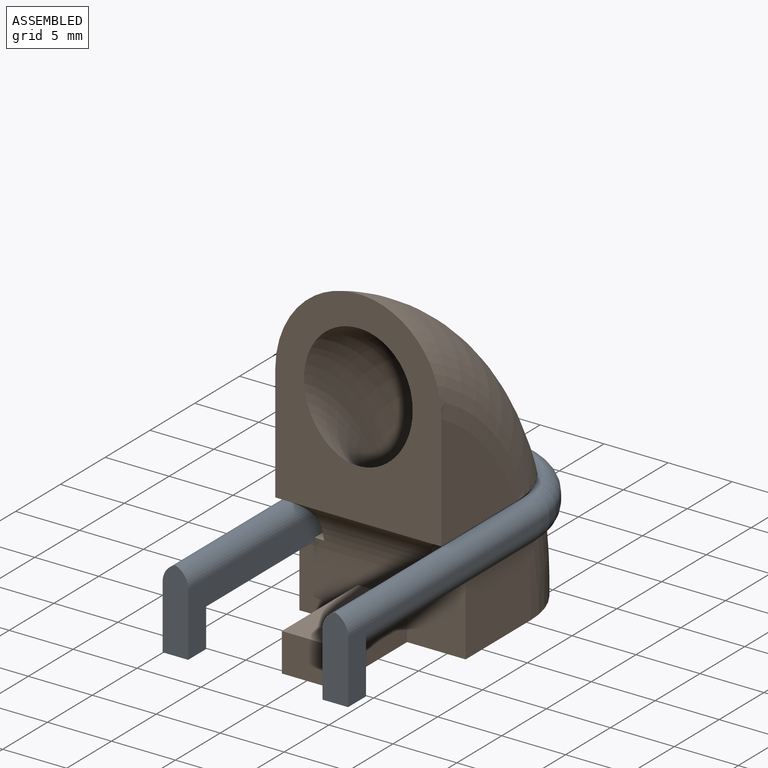
[diagram: assembled view]
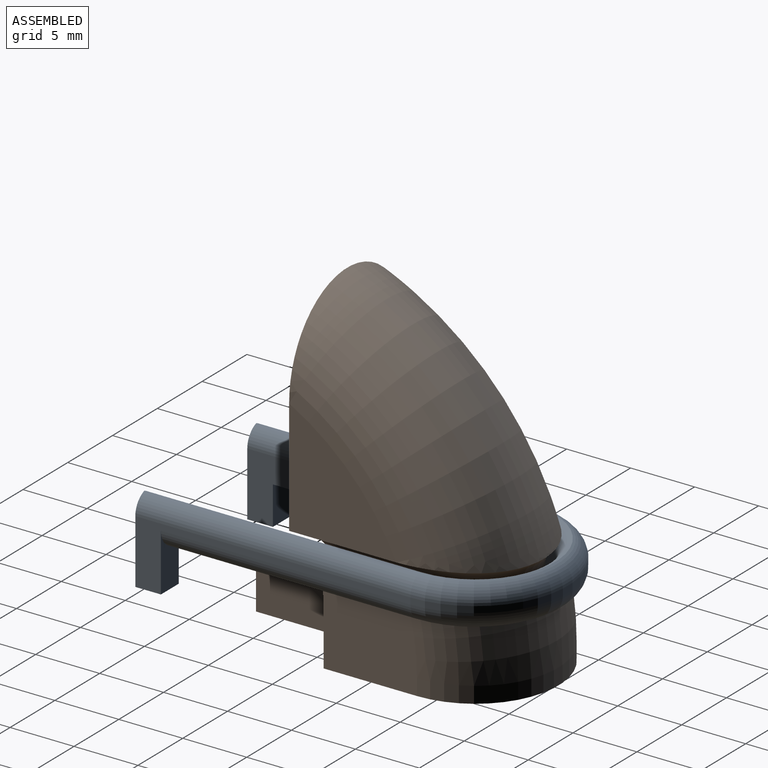
[diagram: assembled view, second angle]
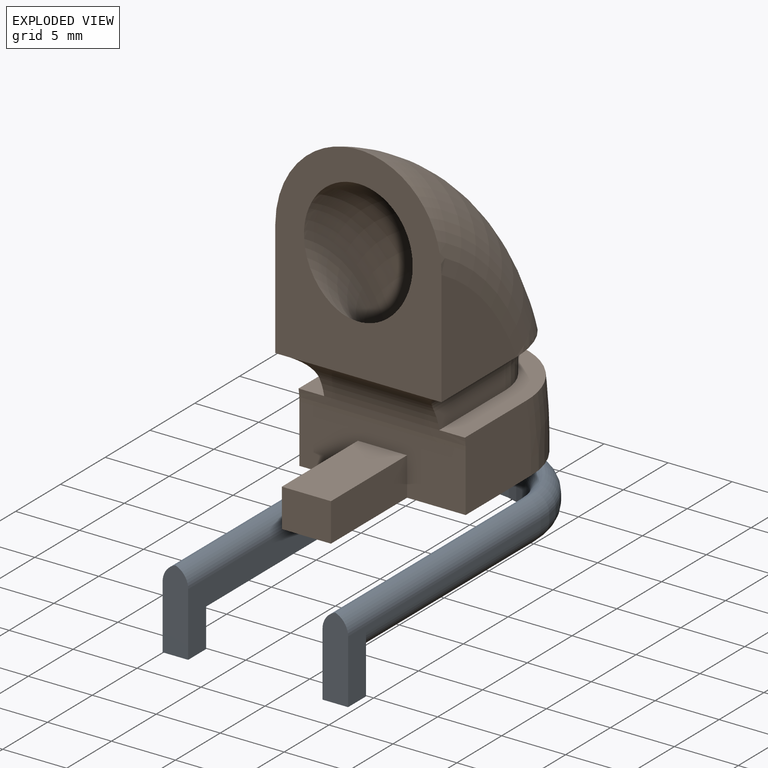
[diagram: exploded view]
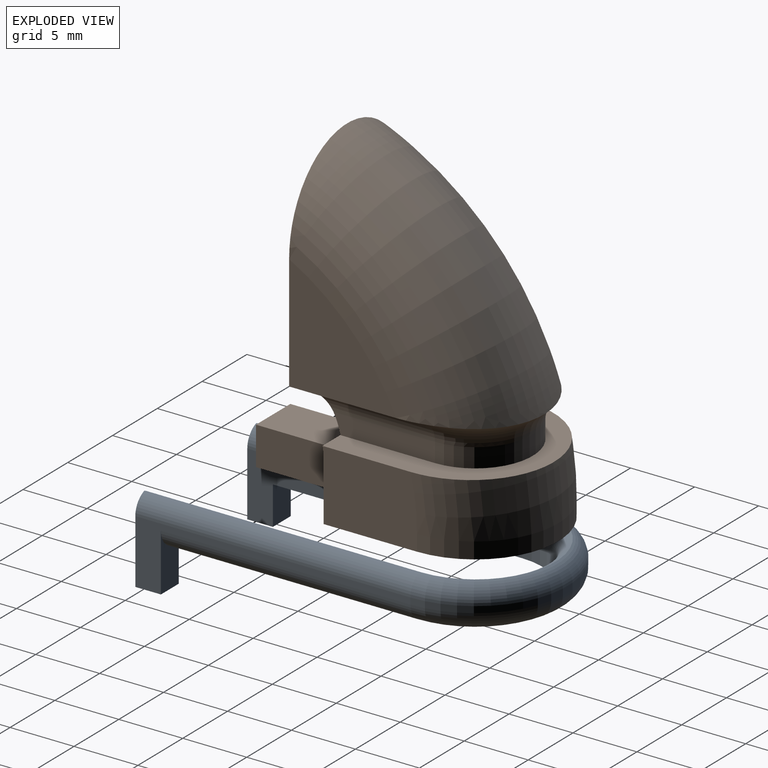
[diagram: exploded view, second angle]
ASSEMBLY  parts=2 mates=2
PART A: 22 faces, bbox 15.7x29.3x6.5 mm
  f0: plane 25.25x11.5mm, normal (0,0,1), area 28.1mm2, adj f1,f2,f3,f9,f11,f19,f20,f21
  f1: plane 21.5x5mm, normal (1,0,0), area 49mm2, adj f0,f2,f8,f9,f10,f13
  f2: cylinder r=5.25mm len=10.5mm, axis (0,0,-1), area 33mm2, adj f0,f1,f3,f15
  f3: plane 21.5x5mm, normal (-1,0,0), area 49mm2, adj f0,f2,f4,f11,f12,f17
  f4: plane 6.41x2mm, normal (0,-1,0), area 12.1mm2, adj f3,f5,f12,f17,f18
  f5: plane 21.5x5mm, normal (1,0,0), area 19.8mm2, adj f4,f6,f11,f12,f18,f19
  f6: cylinder r=7.25mm len=14.5mm, axis (0,0,-1), area 11.4mm2, adj f5,f7,f16,f20
  f7: plane 21.5x5mm, normal (-1,0,0), area 19.8mm2, adj f6,f8,f9,f10,f14,f21
  f8: plane 6.41x2mm, normal (0,-1,0), area 12.1mm2, adj f1,f7,f10,f13,f14
  f9: plane 4.5x2mm, normal (0,1,0), area 6.5mm2, adj f0,f1,f7,f10,f21
  f10: plane 2x2mm, normal (0,0,1), area 4mm2, adj f1,f7,f8,f9
  f11: plane 4.5x2mm, normal (0,1,0), area 6.5mm2, adj f0,f3,f5,f12,f19
  f12: plane 2x2mm, normal (0,0,1), area 4mm2, adj f3,f4,f5,f11
  f13: cylinder r=1.5mm len=21.5mm, axis (0,1,0), area 39.7mm2, adj f1,f8,f14,f15
  f14: cylinder r=1.5mm len=21.5mm, axis (0,-1,0), area 39.7mm2, adj f7,f8,f13,f16
  f15: torus R=6.75mm, axis (0,0,1), area 32.5mm2, adj f2,f13,f16,f17
  f16: torus R=5.75mm, axis (0,0,1), area 40mm2, adj f6,f14,f15,f18
  f17: cylinder r=1.5mm len=21.5mm, axis (0,-1,0), area 39.7mm2, adj f3,f4,f15,f18
  f18: cylinder r=1.5mm len=21.5mm, axis (0,1,0), area 39.7mm2, adj f4,f5,f16,f17
  f19: cylinder r=1.5mm len=19.5mm, axis (0,-1,0), area 45.9mm2, adj f0,f5,f11,f20
  f20: torus R=5.75mm, axis (0,0,1), area 49.6mm2, adj f0,f6,f19,f21
  f21: cylinder r=1.5mm len=19.5mm, axis (0,1,0), area 45.9mm2, adj f0,f7,f9,f20
PART B: 24 faces, bbox 14.1x23.2x27.1 mm
  f0: plane 9x8.36mm, normal (1,0,0), area 46mm2, adj f3,f12,f21
  f1: plane 9x8.36mm, normal (-1,0,0), area 46mm2, adj f3,f12,f23
  f2: plane 13x4.56mm, normal (0,-1,0), area 47.8mm2, adj f5,f6,f8,f9,f11,f15,f20
  f3: torus R=19mm, axis (-1,0,0), area 395.7mm2, adj f0,f1,f12,f21,f22,f23
  f4: plane 3.84x3mm, normal (0,-1,0), area 11.5mm2, adj f8,f9,f11,f15
  f5: plane 7.39x5.5mm, normal (1,0,0), area 39.5mm2, adj f2,f10,f14,f15,f19,f20
  f6: plane 7.39x5.5mm, normal (-1,0,0), area 39.5mm2, adj f2,f10,f14,f15,f19,f20
  f7: cylinder r=4.25mm len=8.5mm, axis (0,0,-1), area 33.8mm2, adj f13,f15
  f8: plane 8.5x3mm, normal (-1,0,0), area 25.5mm2, adj f2,f4,f11,f15
  f9: plane 8.5x3mm, normal (1,0,0), area 25.5mm2, adj f2,f4,f11,f15
  f10: cylinder r=6.5mm len=13mm, axis (0,0,-1), area 25.9mm2, adj f5,f6,f14,f15
  f11: plane 8.5x3.84mm, normal (0,0,1), area 32.6mm2, adj f2,f4,f8,f9
  f12: plane 16.13x13mm, normal (0,-1,0), area 125.1mm2, adj f0,f1,f3,f13,f20
  f13: torus R=19mm, axis (-1,0,0), area 545.5mm2, adj f7,f12
  f14: torus R=19mm, axis (-1,0,0), area 86.9mm2, adj f5,f6,f10,f19
  f15: plane 22.3x13mm, normal (0,0,-1), area 137.2mm2, adj f2,f4,f5,f6,f7,f8,f9,f10
  f16: plane 7.94x1.5mm, normal (-1,0,0), area 11.4mm2, adj f18,f19,f20,f23
  f17: plane 7.94x1.5mm, normal (1,0,0), area 11.4mm2, adj f18,f19,f20,f21
  f18: cylinder r=4.5mm len=9mm, axis (0,0,1), area 21.2mm2, adj f16,f17,f19,f22
  f19: plane 13.54x13.01mm, normal (0,0,1), area 59.2mm2, adj f5,f6,f14,f16,f17,f18,f20
  f20: cylinder r=5mm len=13mm, axis (-1,0,0), area 55.9mm2, adj f2,f5,f6,f12,f16,f17,f19,f21
  f21: cylinder r=2mm len=10mm, axis (0,-1,0), area 28.4mm2, adj f0,f3,f17,f20,f22
  f22: torus R=6.5mm, axis (0,0,-1), area 35.5mm2, adj f3,f18,f21,f23
  f23: cylinder r=2mm len=10mm, axis (0,1,0), area 28.4mm2, adj f1,f3,f16,f20,f22
PLACE A rot(axis=(0,1,0),180deg) t=(-14.27,-17.12,-0.65)mm
PLACE B t=(-14.27,-17.92,-6.4)mm fixed
MATE revolute A.f2 <-> B.f7  axis (0,0,1) through (-14.27,4.38,-3.15)mm
MATE parallel A.f1 <-> B.f17  axis (-1,0,0) through (-9.02,-17.12,-4.65)mm
